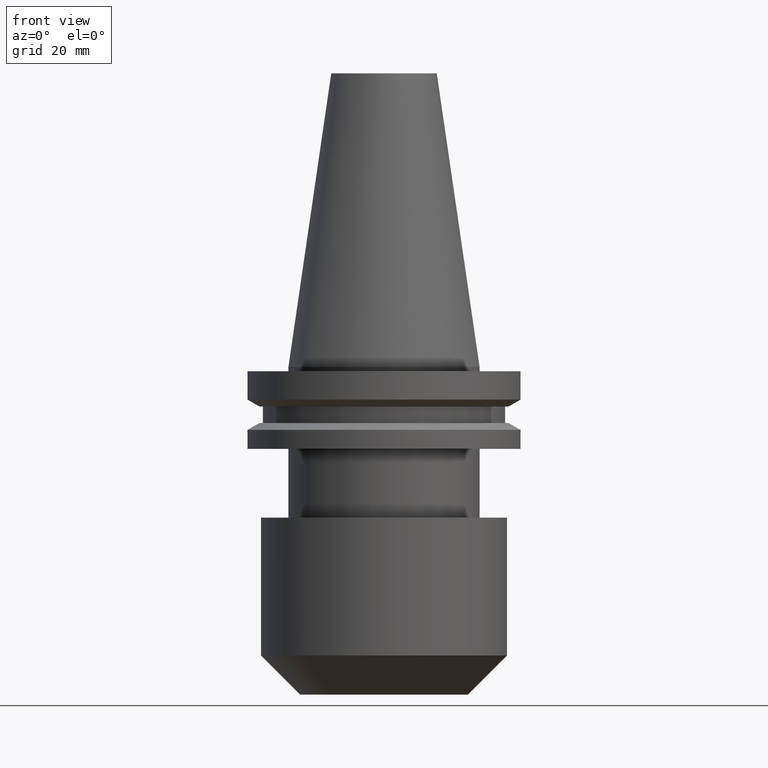
[diagram: clean part render]
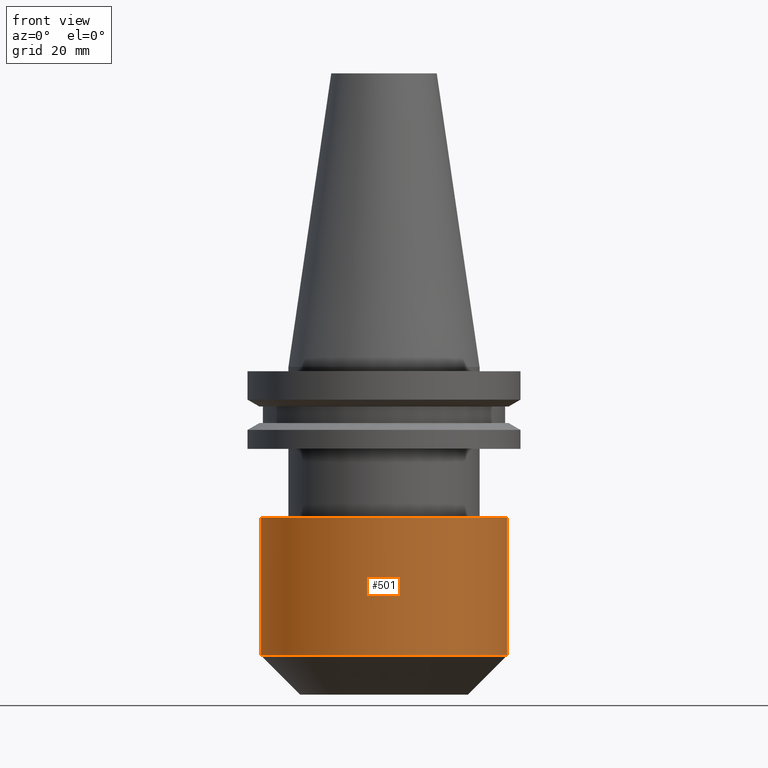
[diagram: same view with one face highlighted and labeled with its STEP entity id]
A machine part, front view. The second image highlights one B-rep face of the part: STEP entity #501.
In plain terms, the highlighted cylindrical surface (partial cylindrical patch) has radius 28.6 mm, axis along (-0, -0, 1).
Its self-contained STEP definition (entity closure, byte-faithful):
#2 = ORIENTED_EDGE ( 'NONE', *, *, #613, .F. ) ;
#33 = CARTESIAN_POINT ( 'NONE',  ( 28.60000000000000142, 0.000000000000000000, 0.000000000000000000 ) ) ;
#70 = DIRECTION ( 'NONE',  ( -0.000000000000000000, -0.000000000000000000, 1.000000000000000000 ) ) ;
#146 = AXIS2_PLACEMENT_3D ( 'NONE', #333, #70, #379 ) ;
#164 = EDGE_LOOP ( 'NONE', ( #746, #596, #727, #2 ) ) ;
#168 = EDGE_CURVE ( 'NONE', #787, #474, #230, .T. ) ;
#179 = VERTEX_POINT ( 'NONE', #757 ) ;
#198 = CARTESIAN_POINT ( 'NONE',  ( 28.60000000000000142, 0.000000000000000000, -35.04999999999999716 ) ) ;
#226 = CARTESIAN_POINT ( 'NONE',  ( -28.60000000000000142, 3.502489845561430207E-15, -67.10000000000000853 ) ) ;
#230 = LINE ( 'NONE', #33, #308 ) ;
#294 = VERTEX_POINT ( 'NONE', #226 ) ;
#308 = VECTOR ( 'NONE', #815, 1000.000000000000000 ) ;
#333 = CARTESIAN_POINT ( 'NONE',  ( 0.000000000000000000, 0.000000000000000000, 0.000000000000000000 ) ) ;
#352 = VECTOR ( 'NONE', #701, 1000.000000000000000 ) ;
#362 = CIRCLE ( 'NONE', #828, 28.60000000000000142 ) ;
#379 = DIRECTION ( 'NONE',  ( 1.000000000000000000, 0.000000000000000000, 0.000000000000000000 ) ) ;
#418 = DIRECTION ( 'NONE',  ( 1.000000000000000000, 0.000000000000000000, 0.000000000000000000 ) ) ;
#428 = LINE ( 'NONE', #768, #352 ) ;
#474 = VERTEX_POINT ( 'NONE', #198 ) ;
#480 = EDGE_CURVE ( 'NONE', #294, #787, #564, .T. ) ;
#501 = ADVANCED_FACE ( 'NONE', ( #780 ), #855, .T. ) ;
#520 = CARTESIAN_POINT ( 'NONE',  ( 0.000000000000000000, 0.000000000000000000, -67.10000000000000853 ) ) ;
#551 = CARTESIAN_POINT ( 'NONE',  ( 0.000000000000000000, 0.000000000000000000, -35.04999999999999716 ) ) ;
#564 = CIRCLE ( 'NONE', #673, 28.60000000000000142 ) ;
#596 = ORIENTED_EDGE ( 'NONE', *, *, #480, .T. ) ;
#598 = DIRECTION ( 'NONE',  ( 1.000000000000000000, 0.000000000000000000, 0.000000000000000000 ) ) ;
#613 = EDGE_CURVE ( 'NONE', #179, #474, #362, .T. ) ;
#673 = AXIS2_PLACEMENT_3D ( 'NONE', #520, #725, #598 ) ;
#698 = CARTESIAN_POINT ( 'NONE',  ( 28.60000000000000142, 0.000000000000000000, -67.10000000000000853 ) ) ;
#701 = DIRECTION ( 'NONE',  ( -0.000000000000000000, -0.000000000000000000, 1.000000000000000000 ) ) ;
#725 = DIRECTION ( 'NONE',  ( -0.000000000000000000, -0.000000000000000000, 1.000000000000000000 ) ) ;
#727 = ORIENTED_EDGE ( 'NONE', *, *, #168, .T. ) ;
#746 = ORIENTED_EDGE ( 'NONE', *, *, #823, .F. ) ;
#751 = DIRECTION ( 'NONE',  ( -0.000000000000000000, -0.000000000000000000, 1.000000000000000000 ) ) ;
#757 = CARTESIAN_POINT ( 'NONE',  ( -28.60000000000000142, 3.502489845561430207E-15, -35.04999999999999716 ) ) ;
#768 = CARTESIAN_POINT ( 'NONE',  ( -28.60000000000000142, 3.502489845561430207E-15, 0.000000000000000000 ) ) ;
#780 = FACE_OUTER_BOUND ( 'NONE', #164, .T. ) ;
#787 = VERTEX_POINT ( 'NONE', #698 ) ;
#815 = DIRECTION ( 'NONE',  ( -0.000000000000000000, -0.000000000000000000, 1.000000000000000000 ) ) ;
#823 = EDGE_CURVE ( 'NONE', #294, #179, #428, .T. ) ;
#828 = AXIS2_PLACEMENT_3D ( 'NONE', #551, #751, #418 ) ;
#855 = CYLINDRICAL_SURFACE ( 'NONE', #146, 28.60000000000000142 ) ;